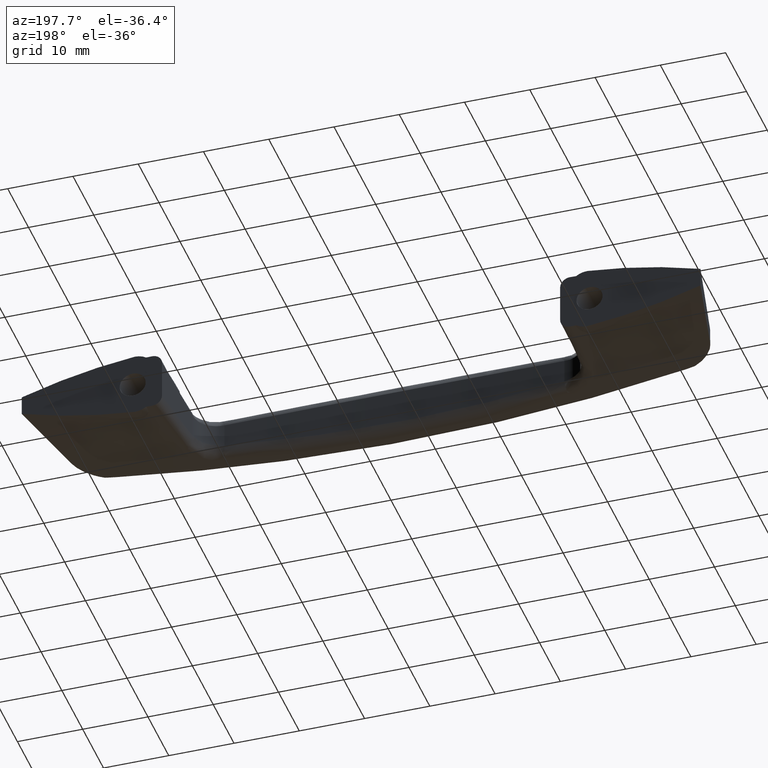
[diagram: clean part render]
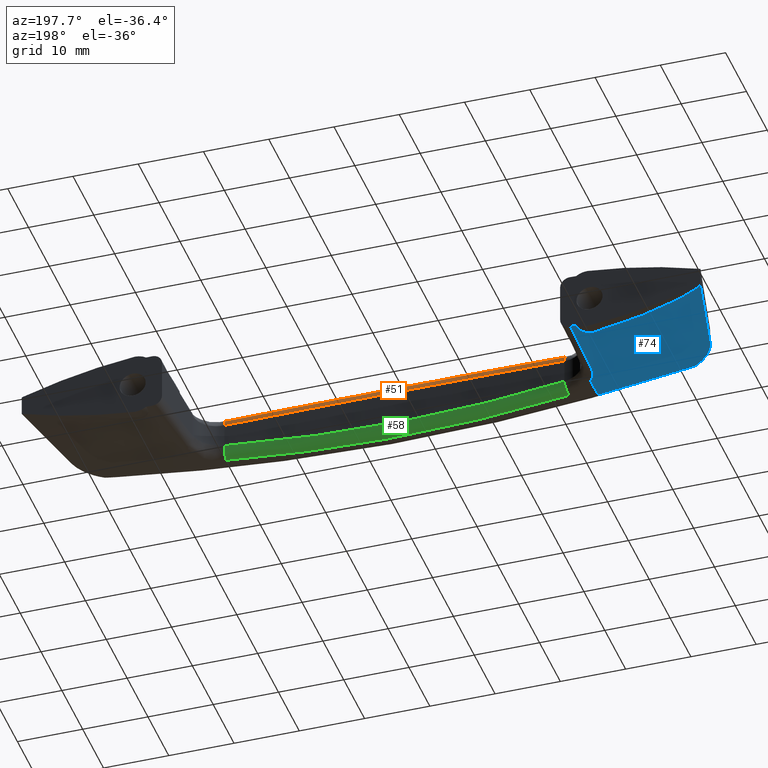
[diagram: same view with three faces highlighted in distinct colors, each labeled with its STEP entity id]
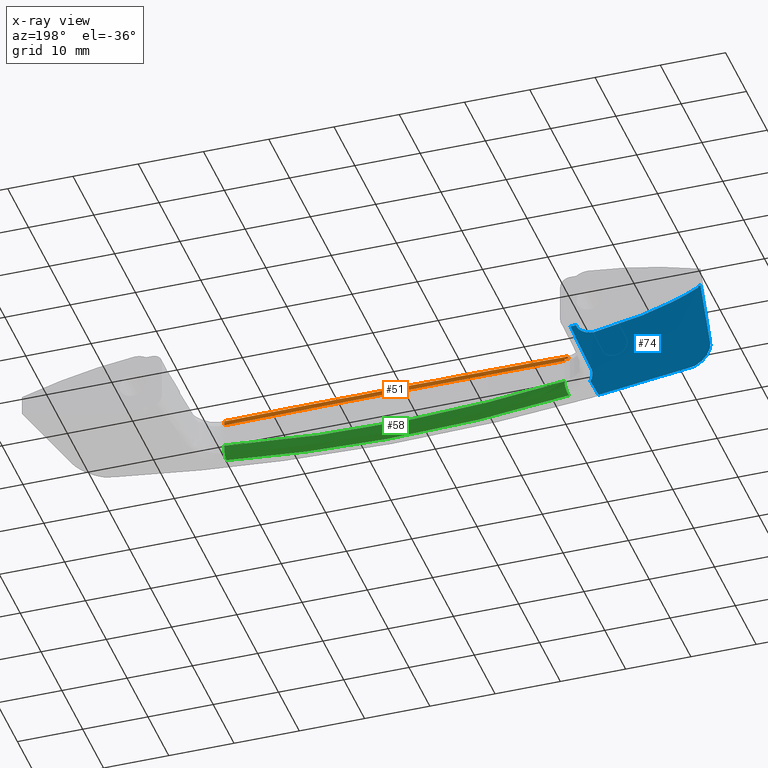
[diagram: x-ray of the same camera — body ghosted, the three highlighted faces saturated]
A machine part, auxiliary view with three faces highlighted in distinct colors.
The next image is the same camera in x-ray (body ghosted, the three faces saturated) — at least one of them is partly hidden behind the body in this view.
Their STEP definitions:

[orange] entity #51 — the highlighted face is a freeform B-spline surface patch.
#51=ADVANCED_FACE('',(#197),#196,.T.);
#196=( BOUNDED_SURFACE() B_SPLINE_SURFACE( 3,3,((#691,#692,#693,#694,#695,#696,#697),(#698,#699,#700,#701,#702,#703,#704),(#705,#706,#707,#708,#709,#710,#711),(#712,#713,#714,#715,#716,#717,#718),(#719,#720,#721,#722,#723,#724,#725),(#726,#727,#728,#729,#730,#731,#732),(#733,#734,#735,#736,#737,#738,#739)), .UNSPECIFIED.,.F.,.F.,.F.) B_SPLINE_SURFACE_WITH_KNOTS((4,1,2,4),(4,1,1,1,4),(0.00000000000E+00,1.34215920462E+01,2.65800156268E+01,5.31600312535E+01),(0.00000000000E+00,6.14791261686E-01,1.22958252337E+00,1.84437378506E+00,2.47242498714E+00), .UNSPECIFIED. ) GEOMETRIC_REPRESENTATION_ITEM() RATIONAL_B_SPLINE_SURFACE(((1.00000000000E+00,1.00000000000E+00,1.00000000000E+00,1.00000000000E+00,1.00000000000E+00,1.00000000000E+00,1.00000000000E+00),(1.00000000000E+00,1.00000000000E+00,1.00000000000E+00,1.00000000000E+00,1.00000000000E+00,1.00000000000E+00,1.00000000000E+00),(1.00000000000E+00,1.00000000000E+00,1.00000000000E+00,1.00000000000E+00,1.00000000000E+00,1.00000000000E+00,1.00000000000E+00),(1.00000000000E+00,1.00000000000E+00,1.00000000000E+00,1.00000000000E+00,1.00000000000E+00,1.00000000000E+00,1.00000000000E+00),(1.00000000000E+00,1.00000000000E+00,1.00000000000E+00,1.00000000000E+00,1.00000000000E+00,1.00000000000E+00,1.00000000000E+00),(1.00000000000E+00,1.00000000000E+00,1.00000000000E+00,1.00000000000E+00,1.00000000000E+00,1.00000000000E+00,1.00000000000E+00),(1.00000000000E+00,1.00000000000E+00,1.00000000000E+00,1.00000000000E+00,1.00000000000E+00,1.00000000000E+00,1.00000000000E+00))) REPRESENTATION_ITEM('') SURFACE() );
#197=FACE_OUTER_BOUND('',#740,.T.);
#691=CARTESIAN_POINT('',(8.47492673210E+00,-1.75558143364E+01,3.31706301302E+00));
#692=CARTESIAN_POINT('',(8.49002428104E+00,-1.73519736695E+01,3.33103035636E+00));
#693=CARTESIAN_POINT('',(8.52642523210E+00,-1.69390010818E+01,3.27418503201E+00));
#694=CARTESIAN_POINT('',(8.59061130841E+00,-1.64060333129E+01,2.94881570871E+00));
#695=CARTESIAN_POINT('',(8.65420421639E+00,-1.60453239728E+01,2.43349025846E+00));
#696=CARTESIAN_POINT('',(8.68891521052E+00,-1.59634321517E+01,2.01960198132E+00));
#697=CARTESIAN_POINT('',(8.70294287400E+00,-1.59663643848E+01,1.81079350719E+00));
#698=CARTESIAN_POINT('',(1.29241307965E+01,-1.78982697488E+01,3.62135597145E+00));
#699=CARTESIAN_POINT('',(1.29367203324E+01,-1.76949209121E+01,3.63403934981E+00));
#700=CARTESIAN_POINT('',(1.29670410673E+01,-1.72833336580E+01,3.57516852293E+00));
#701=CARTESIAN_POINT('',(1.30204887396E+01,-1.67525567074E+01,3.24878372575E+00));
#702=CARTESIAN_POINT('',(1.30735057407E+01,-1.63931495601E+01,2.73424598853E+00));
#703=CARTESIAN_POINT('',(1.31025393789E+01,-1.63110763623E+01,2.32159671364E+00));
#704=CARTESIAN_POINT('',(1.31143135333E+01,-1.63136289347E+01,2.11341112172E+00));
#705=CARTESIAN_POINT('',(2.17623833169E+01,-1.84127842294E+01,4.07889315284E+00));
#706=CARTESIAN_POINT('',(2.17699427952E+01,-1.82097244920E+01,4.09053795758E+00));
#707=CARTESIAN_POINT('',(2.17881358503E+01,-1.77989290067E+01,4.02999113399E+00));
#708=CARTESIAN_POINT('',(2.18201982687E+01,-1.72691796742E+01,3.70261201603E+00));
#709=CARTESIAN_POINT('',(2.18520266088E+01,-1.69099490127E+01,3.18844089585E+00));
#710=CARTESIAN_POINT('',(2.18694937705E+01,-1.68271547415E+01,2.77657619728E+00));
#711=CARTESIAN_POINT('',(2.18765932648E+01,-1.68291374192E+01,2.56878464094E+00));
#712=CARTESIAN_POINT('',(3.06124333427E+01,-1.85843919737E+01,4.23039247225E+00));
#713=CARTESIAN_POINT('',(3.06149382677E+01,-1.83813419533E+01,4.24184548488E+00));
#714=CARTESIAN_POINT('',(3.06209668161E+01,-1.79705729547E+01,4.18097414778E+00));
#715=CARTESIAN_POINT('',(3.06315892920E+01,-1.74407636453E+01,3.85334943635E+00));
#716=CARTESIAN_POINT('',(3.06421301583E+01,-1.70812818760E+01,3.33915430813E+00));
#717=CARTESIAN_POINT('',(3.06479105106E+01,-1.69981729224E+01,2.92736266141E+00));
#718=CARTESIAN_POINT('',(3.06502582104E+01,-1.69999684108E+01,2.71960762486E+00));
#719=CARTESIAN_POINT('',(4.38625082573E+01,-1.85853669303E+01,4.23130399409E+00));
#720=CARTESIAN_POINT('',(4.38574513894E+01,-1.83822511247E+01,4.24289108723E+00));
#721=CARTESIAN_POINT('',(4.38452732845E+01,-1.79712905436E+01,4.18222635571E+00));
#722=CARTESIAN_POINT('',(4.38238019569E+01,-1.74411405428E+01,3.85468319637E+00));
#723=CARTESIAN_POINT('',(4.38024919230E+01,-1.70813882802E+01,3.34036606948E+00));
#724=CARTESIAN_POINT('',(4.37908085383E+01,-1.69982091195E+01,2.92841254548E+00));
#725=CARTESIAN_POINT('',(4.37860651420E+01,-1.70000032186E+01,2.72057607057E+00));
#726=CARTESIAN_POINT('',(5.27118946253E+01,-1.82355502801E+01,3.92054222590E+00));
#727=CARTESIAN_POINT('',(5.27017710811E+01,-1.80325893998E+01,3.93215340017E+00));
#728=CARTESIAN_POINT('',(5.26774175489E+01,-1.76220893210E+01,3.87158338542E+00));
#729=CARTESIAN_POINT('',(5.26344971047E+01,-1.70929826370E+01,3.54431443264E+00));
#730=CARTESIAN_POINT('',(5.25918570017E+01,-1.67344747618E+01,3.03037751073E+00));
#731=CARTESIAN_POINT('',(5.25684126267E+01,-1.66521266865E+01,2.61871690636E+00));
#732=CARTESIAN_POINT('',(5.25588656490E+01,-1.66543057256E+01,2.41102826470E+00));
#733=CARTESIAN_POINT('',(6.15251920679E+01,-1.75568005519E+01,3.31657261034E+00));
#734=CARTESIAN_POINT('',(6.15100977767E+01,-1.73528860625E+01,3.33068094489E+00));
#735=CARTESIAN_POINT('',(6.14736970378E+01,-1.69397050799E+01,3.27405161121E+00));
#736=CARTESIAN_POINT('',(6.14094995255E+01,-1.64063757580E+01,2.94876629498E+00));
#737=CARTESIAN_POINT('',(6.13458937126E+01,-1.60453843935E+01,2.43331285156E+00));
#738=CARTESIAN_POINT('',(6.13111802769E+01,-1.59634231955E+01,2.01925570723E+00));
#739=CARTESIAN_POINT('',(6.12971542753E+01,-1.59663568110E+01,1.81036227850E+00));
#740=EDGE_LOOP('',(#2119,#2120,#2121,#2122,#2123,#2124,#2125));
#2119=ORIENTED_EDGE('',*,*,#2392,.T.);
#2120=ORIENTED_EDGE('',*,*,#2393,.T.);
#2121=ORIENTED_EDGE('',*,*,#2394,.T.);
#2122=ORIENTED_EDGE('',*,*,#2395,.T.);
#2123=ORIENTED_EDGE('',*,*,#2396,.F.);
#2124=ORIENTED_EDGE('',*,*,#2397,.T.);
#2125=ORIENTED_EDGE('',*,*,#2398,.T.);
#2392=EDGE_CURVE('',#2766,#2767,#2768,.T.);
#2393=EDGE_CURVE('',#2767,#2774,#2775,.T.);
#2394=EDGE_CURVE('',#2774,#2781,#2782,.T.);
#2395=EDGE_CURVE('',#2781,#2788,#2789,.T.);
#2396=EDGE_CURVE('',#2795,#2788,#2796,.T.);
#2397=EDGE_CURVE('',#2795,#2802,#2803,.T.);
#2398=EDGE_CURVE('',#2802,#2766,#2809,.T.);
#2766=VERTEX_POINT('',#3908);
#2767=VERTEX_POINT('',#3909);
#2768=(BOUNDED_CURVE() B_SPLINE_CURVE(3,(#3910,#3911,#3912,#3913,#3914,#3915),.UNSPECIFIED.,.F.,.F.) B_SPLINE_CURVE_WITH_KNOTS((4,1,1,4),(0.00000000000E+00,6.66663832931E-01,8.33337506652E-01,9.99988201256E-01),.UNSPECIFIED.) CURVE() GEOMETRIC_REPRESENTATION_ITEM() RATIONAL_B_SPLINE_CURVE((1.00000000000E+00,1.00000000000E+00,1.00000000000E+00,1.00000000000E+00,1.00000000000E+00,1.00000000000E+00)) REPRESENTATION_ITEM('') );
#2774=VERTEX_POINT('',#3916);
#2775=(BOUNDED_CURVE() B_SPLINE_CURVE(3,(#3917,#3918,#3919,#3920,#3921,#3922,#3923,#3924,#3925,#3926,#3927,#3928,#3929),.UNSPECIFIED.,.F.,.F.) B_SPLINE_CURVE_WITH_KNOTS((4,1,1,1,1,1,1,1,1,1,4),(4.02986800000E-09,9.98712303242E-02,1.99811213739E-01,2.99797675252E-01,3.99818823156E-01,4.99862642899E-01,5.99916247646E-01,6.99967491922E-01,8.00004521033E-01,9.00015630081E-01,9.99989331180E-01),.UNSPECIFIED.) CURVE() GEOMETRIC_REPRESENTATION_ITEM() RATIONAL_B_SPLINE_CURVE((1.00000000000E+00,1.00000000000E+00,1.00000000000E+00,1.00000000000E+00,1.00000000000E+00,1.00000000000E+00,1.00000000000E+00,1.00000000000E+00,1.00000000000E+00,1.00000000000E+00,1.00000000000E+00,1.00000000000E+00,1.00000000000E+00)) REPRESENTATION_ITEM('') );
#2781=VERTEX_POINT('',#3930);
#2782=(BOUNDED_CURVE() B_SPLINE_CURVE(3,(#3931,#3932,#3933,#3934,#3935),.UNSPECIFIED.,.F.,.F.) B_SPLINE_CURVE_WITH_KNOTS((4,1,4),(0.00000000000E+00,3.33333187222E-01,9.99996854795E-01),.UNSPECIFIED.) CURVE() GEOMETRIC_REPRESENTATION_ITEM() RATIONAL_B_SPLINE_CURVE((1.00000000000E+00,1.00000000000E+00,1.00000000000E+00,1.00000000000E+00,1.00000000000E+00)) REPRESENTATION_ITEM('') );
#2788=VERTEX_POINT('',#3936);
#2789=CIRCLE('',#3940,3.83885179701E+02);
#2795=VERTEX_POINT('',#3941);
#2796=CIRCLE('',#3945,1.50002394690E+00);
#2802=VERTEX_POINT('',#3946);
#2803=(BOUNDED_CURVE() B_SPLINE_CURVE(3,(#3947,#3948,#3949,#3950,#3951,#3952,#3953,#3954,#3955,#3956,#3957,#3958,#3959,#3960,#3961,#3962,#3963,#3964,#3965,#3966,#3967,#3968,#3969,#3970,#3971,#3972,#3973,#3974,#3975,#3976,#3977,#3978,#3979,#3980,#3981,#3982,#3983,#3984),.UNSPECIFIED.,.F.,.F.) B_SPLINE_CURVE_WITH_KNOTS((4,1,1,1,1,1,1,1,1,1,1,1,1,1,1,1,1,1,1,1,1,1,1,1,1,1,1,1,1,1,1,1,1,1,1,4),(0.00000000000E+00,4.21193892314E-02,8.41521527791E-02,1.26099577813E-01,1.67962959373E-01,2.09743600318E-01,2.51442811257E-01,2.93061910496E-01,3.34602223968E-01,3.76065085161E-01,4.17451835053E-01,4.58763822033E-01,5.00002401823E-01,5.21519319213E-01,5.43055092803E-01,5.64609916002E-01,5.86183981701E-01,6.07777482281E-01,6.29390609600E-01,6.51023554995E-01,6.72676509278E-01,6.94349662733E-01,7.16043205111E-01,7.37757325630E-01,7.59492212970E-01,7.81248055269E-01,8.03025040124E-01,8.24823354587E-01,8.46643185158E-01,8.68484717790E-01,8.90348137878E-01,9.12233630264E-01,9.34141379230E-01,9.56071568497E-01,9.78024381223E-01,1.00000000000E+00),.UNSPECIFIED.) CURVE() GEOMETRIC_REPRESENTATION_ITEM() RATIONAL_B_SPLINE_CURVE((1.00000000000E+00,1.00000000000E+00,1.00000000000E+00,1.00000000000E+00,1.00000000000E+00,1.00000000000E+00,1.00000000000E+00,1.00000000000E+00,1.00000000000E+00,1.00000000000E+00,1.00000000000E+00,1.00000000000E+00,1.00000000000E+00,1.00000000000E+00,1.00000000000E+00,1.00000000000E+00,1.00000000000E+00,1.00000000000E+00,1.00000000000E+00,1.00000000000E+00,1.00000000000E+00,1.00000000000E+00,1.00000000000E+00,1.00000000000E+00,1.00000000000E+00,1.00000000000E+00,1.00000000000E+00,1.00000000000E+00,1.00000000000E+00,1.00000000000E+00,1.00000000000E+00,1.00000000000E+00,1.00000000000E+00,1.00000000000E+00,1.00000000000E+00,1.00000000000E+00,1.00000000000E+00,1.00000000000E+00)) REPRESENTATION_ITEM('') );
#2809=CIRCLE('',#3988,1.50000000000E+00);
#3908=CARTESIAN_POINT('',(8.74022525611E+00,-1.75278793305E+01,3.33728758827E+00));
#3909=CARTESIAN_POINT('',(3.01109683057E+01,-1.85346237857E+01,4.20017535779E+00));
#3910=CARTESIAN_POINT('',(8.74022525611E+00,-1.75278793305E+01,3.33728758827E+00));
#3911=CARTESIAN_POINT('',(1.34765761325E+01,-1.78671546763E+01,3.65874442836E+00));
#3912=CARTESIAN_POINT('',(1.94122270740E+01,-1.81710540334E+01,3.95544983542E+00));
#3913=CARTESIAN_POINT('',(2.65439127050E+01,-1.84252389715E+01,4.14502881088E+00));
#3914=CARTESIAN_POINT('',(2.89227044798E+01,-1.84769240072E+01,4.18668985682E+00));
#3915=CARTESIAN_POINT('',(3.01109683057E+01,-1.85346237857E+01,4.20017535779E+00));
#3916=CARTESIAN_POINT('',(4.07913925727E+01,-1.85201828544E+01,4.18740566209E+00));
#3917=CARTESIAN_POINT('',(3.01109683057E+01,-1.85346237857E+01,4.20017535779E+00));
#3918=CARTESIAN_POINT('',(3.04664964290E+01,-1.85394335530E+01,4.20448961478E+00));
#3919=CARTESIAN_POINT('',(3.11777974449E+01,-1.85490562467E+01,4.21312096399E+00));
#3920=CARTESIAN_POINT('',(3.22451287929E+01,-1.85592109984E+01,4.22227893461E+00));
#3921=CARTESIAN_POINT('',(3.33130371479E+01,-1.85662404217E+01,4.22864282292E+00));
#3922=CARTESIAN_POINT('',(3.43813473104E+01,-1.85698355272E+01,4.23192101298E+00));
#3923=CARTESIAN_POINT('',(3.54499073297E+01,-1.85700805686E+01,4.23216484204E+00));
#3924=CARTESIAN_POINT('',(3.65185663239E+01,-1.85669474786E+01,4.22934482023E+00));
#3925=CARTESIAN_POINT('',(3.75871742279E+01,-1.85604642825E+01,4.22350604751E+00));
#3926=CARTESIAN_POINT('',(3.86555823226E+01,-1.85505468663E+01,4.21459094013E+00));
#3927=CARTESIAN_POINT('',(3.97236562392E+01,-1.85375034938E+01,4.20288892240E+00));
#3928=CARTESIAN_POINT('',(4.04355248475E+01,-1.85259556808E+01,4.19256610523E+00));
#3929=CARTESIAN_POINT('',(4.07913925727E+01,-1.85201828544E+01,4.18740566209E+00));
#3930=CARTESIAN_POINT('',(6.06205377310E+01,-1.76098041502E+01,3.37820925223E+00));
#3931=CARTESIAN_POINT('',(4.07913925727E+01,-1.85201828544E+01,4.18740566209E+00));
#3932=CARTESIAN_POINT('',(4.29966918332E+01,-1.84208152419E+01,4.15654303712E+00));
#3933=CARTESIAN_POINT('',(4.96169350162E+01,-1.82625656331E+01,3.99724393523E+00));
#3934=CARTESIAN_POINT('',(5.62231157389E+01,-1.78734634904E+01,3.67178420633E+00));
#3935=CARTESIAN_POINT('',(6.06205377310E+01,-1.76098041502E+01,3.37820925223E+00));
#3936=CARTESIAN_POINT('',(6.12622620493E+01,-1.75617877374E+01,3.33528622951E+00));
#3937=CARTESIAN_POINT('',(3.41460268597E+01,-1.49890581096E+00,-3.79253951475E+02));
#3938=DIRECTION('',(-7.14139329383E-02,9.96343880203E-01,4.68926706911E-02));
#3939=DIRECTION('',(-6.89646599326E-02,4.19680133310E-02,-9.96735953770E-01));
#3940=AXIS2_PLACEMENT_3D('',#3937,#3938,#3939);
#3941=CARTESIAN_POINT('',(6.10384394082E+01,-1.59865261851E+01,1.84122517874E+00));
#3942=CARTESIAN_POINT('',(6.11550315020E+01,-1.74820121011E+01,1.84122823237E+00));
#3943=DIRECTION('',(9.94717617583E-01,7.75507165202E-02,-6.72513764729E-02));
#3944=DIRECTION('',(7.77268216011E-02,-9.96974694363E-01,2.03571982785E-06));
#3945=AXIS2_PLACEMENT_3D('',#3942,#3943,#3944);
#3946=CARTESIAN_POINT('',(8.96156059175E+00,-1.59865261851E+01,1.84165313145E+00));
#3947=CARTESIAN_POINT('',(6.10384394082E+01,-1.59865261851E+01,1.84122517874E+00));
#3948=CARTESIAN_POINT('',(6.03096824012E+01,-1.60419573678E+01,1.88954410665E+00));
#3949=CARTESIAN_POINT('',(5.88536671998E+01,-1.61527057296E+01,1.98608258647E+00));
#3950=CARTESIAN_POINT('',(5.66695859036E+01,-1.63006270413E+01,2.11543516243E+00));
#3951=CARTESIAN_POINT('',(5.44884691675E+01,-1.64350746327E+01,2.23326976860E+00));
#3952=CARTESIAN_POINT('',(5.23102395050E+01,-1.65548251617E+01,2.33849446274E+00));
#3953=CARTESIAN_POINT('',(5.01350400211E+01,-1.66602917372E+01,2.43140093456E+00));
#3954=CARTESIAN_POINT('',(4.79629537137E+01,-1.67514509731E+01,2.51191125112E+00));
#3955=CARTESIAN_POINT('',(4.57940784678E+01,-1.68283967445E+01,2.58004622545E+00));
#3956=CARTESIAN_POINT('',(4.36285069906E+01,-1.68911922381E+01,2.63580028483E+00));
#3957=CARTESIAN_POINT('',(4.14663322816E+01,-1.69399094659E+01,2.67917492391E+00));
#3958=CARTESIAN_POINT('',(3.93076457642E+01,-1.69746186931E+01,2.71016968291E+00));
#3959=CARTESIAN_POINT('',(3.71525392982E+01,-1.69953912595E+01,2.72878487073E+00));
#3960=CARTESIAN_POINT('',(3.53428058527E+01,-1.70012016762E+01,2.73402941873E+00));
#3961=CARTESIAN_POINT('',(3.38769863296E+01,-1.69987451212E+01,2.73184956834E+00));
#3962=CARTESIAN_POINT('',(3.27534879005E+01,-1.69930959095E+01,2.72680917551E+00));
#3963=CARTESIAN_POINT('',(3.16290413480E+01,-1.69836689911E+01,2.71839733162E+00));
#3964=CARTESIAN_POINT('',(3.05036591519E+01,-1.69704546712E+01,2.70661414579E+00));
#3965=CARTESIAN_POINT('',(2.93773542025E+01,-1.69534432858E+01,2.69145958903E+00));
#3966=CARTESIAN_POINT('',(2.82501393631E+01,-1.69326252069E+01,2.67293366942E+00));
#3967=CARTESIAN_POINT('',(2.71220275873E+01,-1.69079908418E+01,2.65103638511E+00));
#3968=CARTESIAN_POINT('',(2.59930318875E+01,-1.68795306338E+01,2.62576773689E+00));
#3969=CARTESIAN_POINT('',(2.48631653435E+01,-1.68472350624E+01,2.59712772483E+00));
#3970=CARTESIAN_POINT('',(2.37324411001E+01,-1.68110946438E+01,2.56511634929E+00));
#3971=CARTESIAN_POINT('',(2.26008723676E+01,-1.67710999310E+01,2.52973361033E+00));
#3972=CARTESIAN_POINT('',(2.14684724216E+01,-1.67272415151E+01,2.49097950876E+00));
#3973=CARTESIAN_POINT('',(2.03352546038E+01,-1.66795100220E+01,2.44885404271E+00));
#3974=CARTESIAN_POINT('',(1.92012323195E+01,-1.66278961273E+01,2.40335722032E+00));
#3975=CARTESIAN_POINT('',(1.80664190455E+01,-1.65723905015E+01,2.35448901249E+00));
#3976=CARTESIAN_POINT('',(1.69308283015E+01,-1.65129840174E+01,2.30224952900E+00));
#3977=CARTESIAN_POINT('',(1.57944737559E+01,-1.64496669755E+01,2.24663836080E+00));
#3978=CARTESIAN_POINT('',(1.46573688321E+01,-1.63824320027E+01,2.18765703792E+00));
#3979=CARTESIAN_POINT('',(1.35195281776E+01,-1.63112632181E+01,2.12529984273E+00));
#3980=CARTESIAN_POINT('',(1.23809621740E+01,-1.62361767308E+01,2.05958814749E+00));
#3981=CARTESIAN_POINT('',(1.12416974581E+01,-1.61570692707E+01,1.99044206869E+00));
#3982=CARTESIAN_POINT('',(1.01017002156E+01,-1.60742839778E+01,1.91816019718E+00));
#3983=CARTESIAN_POINT('',(9.34173864787E+00,-1.60157889055E+01,1.86716431177E+00));
#3984=CARTESIAN_POINT('',(8.96156059175E+00,-1.59865261851E+01,1.84165313145E+00));
#3985=CARTESIAN_POINT('',(8.84497056455E+00,-1.74819882426E+01,1.84165313145E+00));
#3986=DIRECTION('',(9.94715396720E-01,-7.75505433761E-02,6.72844168444E-02));
#3987=DIRECTION('',(-7.77266848007E-02,-9.96974705030E-01,-3.84136762522E-13));
#3988=AXIS2_PLACEMENT_3D('',#3985,#3986,#3987);

[blue] entity #74 — the highlighted face is a freeform B-spline surface patch.
#74=ADVANCED_FACE('',(#427),#426,.F.);
#426=( BOUNDED_SURFACE() B_SPLINE_SURFACE( 3,3,((#1883,#1884,#1885,#1886,#1887),(#1888,#1889,#1890,#1891,#1892),(#1893,#1894,#1895,#1896,#1897),(#1898,#1899,#1900,#1901,#1902)), .UNSPECIFIED.,.F.,.F.,.F.) B_SPLINE_SURFACE_WITH_KNOTS((4,4),(4,1,4),(0.00000000000E+00,2.26330040891E+01),(0.00000000000E+00,1.75019230603E+01,1.99560299999E+01), .UNSPECIFIED. ) GEOMETRIC_REPRESENTATION_ITEM() RATIONAL_B_SPLINE_SURFACE(((1.00000000000E+00,1.00000000000E+00,1.00000000000E+00,1.00000000000E+00,1.00000000000E+00),(1.00000000000E+00,1.00000000000E+00,1.00000000000E+00,1.00000000000E+00,1.00000000000E+00),(1.00000000000E+00,1.00000000000E+00,1.00000000000E+00,1.00000000000E+00,1.00000000000E+00),(1.00000000000E+00,1.00000000000E+00,1.00000000000E+00,1.00000000000E+00,1.00000000000E+00))) REPRESENTATION_ITEM('') SURFACE() );
#427=FACE_OUTER_BOUND('',#1903,.T.);
#1883=CARTESIAN_POINT('',(5.21805327550E+00,9.64692107430E-02,-4.50877799349E+00));
#1884=CARTESIAN_POINT('',(5.05595701499E+00,-5.60467154653E+00,-3.95695367753E+00));
#1885=CARTESIAN_POINT('',(4.87023290528E+00,-1.21052676049E+01,-3.32633772389E+00));
#1886=CARTESIAN_POINT('',(4.86519182147E+00,-1.85967202630E+01,-2.98021246290E+00));
#1887=CARTESIAN_POINT('',(4.86621383653E+00,-1.93949281664E+01,-2.94023275523E+00));
#1888=CARTESIAN_POINT('',(-2.32578180898E+00,9.64692107430E-02,-4.56144827307E+00));
#1889=CARTESIAN_POINT('',(-1.98744628357E+00,-5.60467154653E+00,-3.74553154019E+00));
#1890=CARTESIAN_POINT('',(-1.60208908613E+00,-1.21052676049E+01,-2.81222693114E+00));
#1891=CARTESIAN_POINT('',(-1.13240592045E+00,-1.85967202630E+01,-2.47808866941E+00));
#1892=CARTESIAN_POINT('',(-1.07387999305E+00,-1.93949281664E+01,-2.44244266718E+00));
#1893=CARTESIAN_POINT('',(-9.87197888320E+00,9.64692107430E-02,-3.53611462061E+00));
#1894=CARTESIAN_POINT('',(-9.02587123160E+00,-5.60467154653E+00,-2.87059028646E+00));
#1895=CARTESIAN_POINT('',(-8.06101607774E+00,-1.21052676049E+01,-2.10927951470E+00));
#1896=CARTESIAN_POINT('',(-7.11765038442E+00,-1.85967202630E+01,-1.84390595670E+00));
#1897=CARTESIAN_POINT('',(-7.00183460352E+00,-1.93949281664E+01,-1.81577825425E+00));
#1898=CARTESIAN_POINT('',(-1.71285656690E+01,9.64692107430E-02,-1.47239607620E+00));
#1899=CARTESIAN_POINT('',(-1.58963872814E+01,-5.60467154653E+00,-1.35412839835E+00));
#1900=CARTESIAN_POINT('',(-1.44914253223E+01,-1.21052676049E+01,-1.21931073813E+00));
#1901=CARTESIAN_POINT('',(-1.30881545392E+01,-1.85967202630E+01,-1.07777386862E+00));
#1902=CARTESIAN_POINT('',(-1.29156016880E+01,-1.93949281664E+01,-1.06030721133E+00));
#1903=EDGE_LOOP('',(#2229,#2230,#2231,#2232,#2233,#2234,#2235,#2236,#2237,#2238,#2239,#2240,#2241));
#2229=ORIENTED_EDGE('',*,*,#2469,.F.);
#2230=ORIENTED_EDGE('',*,*,#2433,.T.);
#2231=ORIENTED_EDGE('',*,*,#2428,.T.);
#2232=ORIENTED_EDGE('',*,*,#2468,.T.);
#2233=ORIENTED_EDGE('',*,*,#2467,.T.);
#2234=ORIENTED_EDGE('',*,*,#2357,.F.);
#2235=ORIENTED_EDGE('',*,*,#2458,.T.);
#2236=ORIENTED_EDGE('',*,*,#2450,.F.);
#2237=ORIENTED_EDGE('',*,*,#2470,.F.);
#2238=ORIENTED_EDGE('',*,*,#2382,.F.);
#2239=ORIENTED_EDGE('',*,*,#2381,.T.);
#2240=ORIENTED_EDGE('',*,*,#2380,.F.);
#2241=ORIENTED_EDGE('',*,*,#2378,.F.);
#2357=EDGE_CURVE('',#2520,#2527,#2528,.T.);
#2378=EDGE_CURVE('',#2663,#2671,#2672,.T.);
#2380=EDGE_CURVE('',#2671,#2684,#2685,.T.);
#2381=EDGE_CURVE('',#2691,#2684,#2692,.T.);
#2382=EDGE_CURVE('',#2691,#2698,#2699,.T.);
#2428=EDGE_CURVE('',#3012,#2999,#3013,.T.);
#2433=EDGE_CURVE('',#3033,#3012,#3046,.T.);
#2450=EDGE_CURVE('',#3159,#3160,#3161,.T.);
#2458=EDGE_CURVE('',#2520,#3160,#3215,.T.);
#2467=EDGE_CURVE('',#3270,#2527,#3271,.T.);
#2468=EDGE_CURVE('',#2999,#3270,#3277,.T.);
#2469=EDGE_CURVE('',#3033,#2663,#3283,.T.);
#2470=EDGE_CURVE('',#2698,#3159,#3289,.T.);
#2520=VERTEX_POINT('',#3479);
#2527=VERTEX_POINT('',#3490);
#2528=(BOUNDED_CURVE() B_SPLINE_CURVE(3,(#3491,#3492,#3493,#3494,#3495,#3496),.UNSPECIFIED.,.F.,.F.) B_SPLINE_CURVE_WITH_KNOTS((4,2,4),(0.00000000000E+00,5.00000000000E-01,1.00000000000E+00),.UNSPECIFIED.) CURVE() GEOMETRIC_REPRESENTATION_ITEM() RATIONAL_B_SPLINE_CURVE((1.00000000000E+00,1.00000000000E+00,1.00000000000E+00,1.00000000000E+00,1.00000000000E+00,1.00000000000E+00)) REPRESENTATION_ITEM('') );
#2663=VERTEX_POINT('',#3732);
#2671=VERTEX_POINT('',#3738);
#2672=(BOUNDED_CURVE() B_SPLINE_CURVE(3,(#3739,#3740,#3741,#3742,#3743,#3744,#3745,#3746,#3747,#3748,#3749,#3750,#3751,#3752,#3753,#3754,#3755,#3756,#3757,#3758,#3759,#3760,#3761,#3762,#3763,#3764,#3765,#3766),.UNSPECIFIED.,.F.,.F.) B_SPLINE_CURVE_WITH_KNOTS((4,2,2,2,2,2,2,2,2,2,2,2,2,4),(0.00000000000E+00,1.25000000000E-01,2.50000000000E-01,3.12500000000E-01,3.75000000000E-01,5.00000000000E-01,5.62500000000E-01,5.93750000000E-01,6.25000000000E-01,7.50000000000E-01,8.12500000000E-01,8.75000000000E-01,9.37500000000E-01,1.00000000000E+00),.UNSPECIFIED.) CURVE() GEOMETRIC_REPRESENTATION_ITEM() RATIONAL_B_SPLINE_CURVE((1.00000000000E+00,1.00000000000E+00,1.00000000000E+00,1.00000000000E+00,1.00000000000E+00,1.00000000000E+00,1.00000000000E+00,1.00000000000E+00,1.00000000000E+00,1.00000000000E+00,1.00000000000E+00,1.00000000000E+00,1.00000000000E+00,1.00000000000E+00,1.00000000000E+00,1.00000000000E+00,1.00000000000E+00,1.00000000000E+00,1.00000000000E+00,1.00000000000E+00,1.00000000000E+00,1.00000000000E+00,1.00000000000E+00,1.00000000000E+00,1.00000000000E+00,1.00000000000E+00,1.00000000000E+00,1.00000000000E+00)) REPRESENTATION_ITEM('') );
#2684=VERTEX_POINT('',#3771);
#2685=(BOUNDED_CURVE() B_SPLINE_CURVE(3,(#3772,#3773,#3774,#3775,#3776,#3777,#3778,#3779,#3780,#3781,#3782,#3783,#3784,#3785,#3786,#3787,#3788,#3789,#3790,#3791,#3792,#3793,#3794,#3795,#3796,#3797,#3798,#3799),.UNSPECIFIED.,.F.,.F.) B_SPLINE_CURVE_WITH_KNOTS((4,2,2,2,2,2,2,2,2,2,2,2,2,4),(0.00000000000E+00,2.50000000000E-01,5.00000000000E-01,5.62500000000E-01,6.25000000000E-01,7.50000000000E-01,8.12500000000E-01,8.75000000000E-01,9.06250000000E-01,9.37500000000E-01,9.68750000000E-01,9.84375000000E-01,9.92187500000E-01,1.00000000000E+00),.UNSPECIFIED.) CURVE() GEOMETRIC_REPRESENTATION_ITEM() RATIONAL_B_SPLINE_CURVE((1.00000000000E+00,1.00000000000E+00,1.00000000000E+00,1.00000000000E+00,1.00000000000E+00,1.00000000000E+00,1.00000000000E+00,1.00000000000E+00,1.00000000000E+00,1.00000000000E+00,1.00000000000E+00,1.00000000000E+00,1.00000000000E+00,1.00000000000E+00,1.00000000000E+00,1.00000000000E+00,1.00000000000E+00,1.00000000000E+00,1.00000000000E+00,1.00000000000E+00,1.00000000000E+00,1.00000000000E+00,1.00000000000E+00,1.00000000000E+00,1.00000000000E+00,1.00000000000E+00,1.00000000000E+00,1.00000000000E+00)) REPRESENTATION_ITEM('') );
#2691=VERTEX_POINT('',#3800);
#2692=CIRCLE('',#3804,1.58284550455E+02);
#2698=VERTEX_POINT('',#3805);
#2699=CIRCLE('',#3809,8.14058417845E-01);
#2999=VERTEX_POINT('',#4331);
#3012=VERTEX_POINT('',#4366);
#3013=(BOUNDED_CURVE() B_SPLINE_CURVE(3,(#4367,#4368,#4369,#4370,#4371,#4372,#4373,#4374,#4375,#4376,#4377,#4378,#4379,#4380,#4381,#4382,#4383,#4384),.UNSPECIFIED.,.F.,.F.) B_SPLINE_CURVE_WITH_KNOTS((4,1,1,1,1,1,1,1,1,1,1,1,1,1,1,4),(0.00000000000E+00,5.06996021178E-02,1.01121525699E-01,1.51310483498E-01,2.01311091073E-01,2.51167767196E-01,3.00924633923E-01,3.50625417630E-01,4.00313352329E-01,4.50031086500E-01,4.99820594624E-01,6.00510609809E-01,7.00526376081E-01,8.00216192884E-01,8.99926675572E-01,1.00000000000E+00),.UNSPECIFIED.) CURVE() GEOMETRIC_REPRESENTATION_ITEM() RATIONAL_B_SPLINE_CURVE((1.00000000000E+00,1.00000000000E+00,1.00000000000E+00,1.00000000000E+00,1.00000000000E+00,1.00000000000E+00,1.00000000000E+00,1.00000000000E+00,1.00000000000E+00,1.00000000000E+00,1.00000000000E+00,1.00000000000E+00,1.00000000000E+00,1.00000000000E+00,1.00000000000E+00,1.00000000000E+00,1.00000000000E+00,1.00000000000E+00)) REPRESENTATION_ITEM('') );
#3033=VERTEX_POINT('',#4410);
#3046=(BOUNDED_CURVE() B_SPLINE_CURVE(3,(#4425,#4426,#4427,#4428,#4429,#4430,#4431,#4432,#4433,#4434),.UNSPECIFIED.,.F.,.F.) B_SPLINE_CURVE_WITH_KNOTS((4,1,1,1,1,1,1,4),(0.00000000000E+00,1.09105529469E-01,2.29503777238E-01,3.61174233124E-01,5.04091118860E-01,6.58223871331E-01,8.23538485299E-01,1.00000000000E+00),.UNSPECIFIED.) CURVE() GEOMETRIC_REPRESENTATION_ITEM() RATIONAL_B_SPLINE_CURVE((1.00000000000E+00,1.00000000000E+00,1.00000000000E+00,1.00000000000E+00,1.00000000000E+00,1.00000000000E+00,1.00000000000E+00,1.00000000000E+00,1.00000000000E+00,1.00000000000E+00)) REPRESENTATION_ITEM('') );
#3159=VERTEX_POINT('',#4601);
#3160=VERTEX_POINT('',#4602);
#3161=(BOUNDED_CURVE() B_SPLINE_CURVE(3,(#4603,#4604,#4605,#4606),.UNSPECIFIED.,.F.,.F.) B_SPLINE_CURVE_WITH_KNOTS((4,4),(0.00000000000E+00,6.14284639556E-01),.UNSPECIFIED.) CURVE() GEOMETRIC_REPRESENTATION_ITEM() RATIONAL_B_SPLINE_CURVE((1.00000000000E+00,1.00000000000E+00,1.00000000000E+00,1.00000000000E+00)) REPRESENTATION_ITEM('') );
#3215=(BOUNDED_CURVE() B_SPLINE_CURVE(3,(#4635,#4636,#4637,#4638,#4639,#4640,#4641,#4642,#4643,#4644,#4645,#4646,#4647,#4648,#4649,#4650,#4651,#4652,#4653,#4654,#4655,#4656,#4657,#4658,#4659,#4660),.UNSPECIFIED.,.F.,.F.) B_SPLINE_CURVE_WITH_KNOTS((4,2,2,2,2,2,2,2,2,2,2,2,4),(0.00000000000E+00,6.25000000000E-02,1.25000000000E-01,2.50000000000E-01,3.75000000000E-01,4.06250000000E-01,4.37500000000E-01,5.00000000000E-01,6.25000000000E-01,7.50000000000E-01,8.12500000000E-01,8.75000000000E-01,1.00000000000E+00),.UNSPECIFIED.) CURVE() GEOMETRIC_REPRESENTATION_ITEM() RATIONAL_B_SPLINE_CURVE((1.00000000000E+00,1.00000000000E+00,1.00000000000E+00,1.00000000000E+00,1.00000000000E+00,1.00000000000E+00,1.00000000000E+00,1.00000000000E+00,1.00000000000E+00,1.00000000000E+00,1.00000000000E+00,1.00000000000E+00,1.00000000000E+00,1.00000000000E+00,1.00000000000E+00,1.00000000000E+00,1.00000000000E+00,1.00000000000E+00,1.00000000000E+00,1.00000000000E+00,1.00000000000E+00,1.00000000000E+00,1.00000000000E+00,1.00000000000E+00,1.00000000000E+00,1.00000000000E+00)) REPRESENTATION_ITEM('') );
#3270=VERTEX_POINT('',#4768);
#3271=(BOUNDED_CURVE() B_SPLINE_CURVE(3,(#4769,#4770,#4771,#4772),.UNSPECIFIED.,.F.,.F.) B_SPLINE_CURVE_WITH_KNOTS((4,4),(9.00830430130E-01,1.00000000000E+00),.UNSPECIFIED.) CURVE() GEOMETRIC_REPRESENTATION_ITEM() RATIONAL_B_SPLINE_CURVE((1.00000000000E+00,1.00000000000E+00,1.00000000000E+00,1.00000000000E+00)) REPRESENTATION_ITEM('') );
#3277=CIRCLE('',#4776,1.96240245801E+02);
#3283=CIRCLE('',#4780,7.99857012751E+01);
#3289=CIRCLE('',#4784,8.03521478451E+01);
#3479=CARTESIAN_POINT('',(-1.01960830841E+01,-1.87285518601E+01,-1.43227841085E+00));
#3490=CARTESIAN_POINT('',(4.77773629513E+00,-1.92793649142E+01,-2.93861835853E+00));
#3491=CARTESIAN_POINT('',(-1.01960830841E+01,-1.87285518601E+01,-1.43227841085E+00));
#3492=CARTESIAN_POINT('',(-7.70627581881E+00,-1.88463000106E+01,-1.72801896496E+00));
#3493=CARTESIAN_POINT('',(-5.21315600910E+00,-1.89516820399E+01,-2.00107272933E+00));
#3494=CARTESIAN_POINT('',(-2.21527136752E-01,-1.91356378873E+01,-2.50300008025E+00));
#3495=CARTESIAN_POINT('',(2.27696598021E+00,-1.92142669191E+01,-2.73183705189E+00));
#3496=CARTESIAN_POINT('',(4.77773629513E+00,-1.92793649142E+01,-2.93861835853E+00));
#3732=CARTESIAN_POINT('',(2.06258466544E+00,-5.45849600000E-16,-4.45734734384E+00));
#3738=CARTESIAN_POINT('',(3.42183007506E-01,-2.95523113438E+00,-4.03318838558E+00));
#3739=CARTESIAN_POINT('',(2.06258466544E+00,-5.45849600000E-16,-4.45734734384E+00));
#3740=CARTESIAN_POINT('',(2.08674469328E+00,-1.57888215438E-01,-4.44042408759E+00));
#3741=CARTESIAN_POINT('',(2.09881329630E+00,-3.15558512261E-01,-4.42315813543E+00));
#3742=CARTESIAN_POINT('',(2.10076934932E+00,-6.30490591442E-01,-4.38791993108E+00));
#3743=CARTESIAN_POINT('',(2.09064792494E+00,-7.87752276262E-01,-4.36994798089E+00));
#3744=CARTESIAN_POINT('',(2.05800477953E+00,-1.02331123011E+00,-4.34232769632E+00));
#3745=CARTESIAN_POINT('',(2.04410482916E+00,-1.10210627769E+00,-4.33296874898E+00));
#3746=CARTESIAN_POINT('',(2.01056273490E+00,-1.25717554143E+00,-4.31427866176E+00));
#3747=CARTESIAN_POINT('',(1.99092747844E+00,-1.33359798685E+00,-4.30493128431E+00));
#3748=CARTESIAN_POINT('',(1.92321933517E+00,-1.55944262521E+00,-4.27684559908E+00));
#3749=CARTESIAN_POINT('',(1.86645216419E+00,-1.70548441578E+00,-4.25806633647E+00));
#3750=CARTESIAN_POINT('',(1.76131098585E+00,-1.91675296266E+00,-4.22963495356E+00));
#3751=CARTESIAN_POINT('',(1.72290856857E+00,-1.98586755211E+00,-4.22011356045E+00));
#3752=CARTESIAN_POINT('',(1.65965054017E+00,-2.08733194317E+00,-4.20573491966E+00));
#3753=CARTESIAN_POINT('',(1.63757929107E+00,-2.12083074521E+00,-4.20091864201E+00));
#3754=CARTESIAN_POINT('',(1.59199467653E+00,-2.18623282365E+00,-4.19136661665E+00));
#3755=CARTESIAN_POINT('',(1.56842413516E+00,-2.21823424130E+00,-4.18661719618E+00));
#3756=CARTESIAN_POINT('',(1.44658482424E+00,-2.37465607722E+00,-4.16299780917E+00));
#3757=CARTESIAN_POINT('',(1.33655186593E+00,-2.48849663535E+00,-4.14450451900E+00));
#3758=CARTESIAN_POINT('',(1.14879620476E+00,-2.63881271032E+00,-4.11733780419E+00));
#3759=CARTESIAN_POINT('',(1.08346749761E+00,-2.68456078184E+00,-4.10854011161E+00));
#3760=CARTESIAN_POINT('',(9.48246111145E-01,-2.76636972552E+00,-4.09160190373E+00));
#3761=CARTESIAN_POINT('',(8.78193272517E-01,-2.80256489469E+00,-4.08343760091E+00));
#3762=CARTESIAN_POINT('',(7.32901386227E-01,-2.86495289651E+00,-4.06774954564E+00));
#3763=CARTESIAN_POINT('',(6.57492203700E-01,-2.89119922713E+00,-4.06020925223E+00));
#3764=CARTESIAN_POINT('',(5.01614990680E-01,-2.93234051820E+00,-4.04591351996E+00));
#3765=CARTESIAN_POINT('',(4.22505487674E-01,-2.94689851636E+00,-4.03928052543E+00));
#3766=CARTESIAN_POINT('',(3.42183007506E-01,-2.95523113438E+00,-4.03318838558E+00));
#3771=CARTESIAN_POINT('',(-1.65773206453E+01,-2.62320394384E-01,-1.59623253017E+00));
#3772=CARTESIAN_POINT('',(3.42183007506E-01,-2.95523113438E+00,-4.03318838558E+00));
#3773=CARTESIAN_POINT('',(-1.09917240770E+00,-2.84457125484E+00,-3.95435393310E+00));
#3774=CARTESIAN_POINT('',(-2.53443706179E+00,-2.70599369733E+00,-3.84718187547E+00));
#3775=CARTESIAN_POINT('',(-5.39275183433E+00,-2.37504550339E+00,-3.57340552691E+00));
#3776=CARTESIAN_POINT('',(-6.81580916273E+00,-2.18276157808E+00,-3.40677109123E+00));
#3777=CARTESIAN_POINT('',(-8.58692887314E+00,-1.91203086884E+00,-3.15679685968E+00));
#3778=CARTESIAN_POINT('',(-8.94084281077E+00,-1.85635511386E+00,-3.10469599692E+00));
#3779=CARTESIAN_POINT('',(-9.64707871171E+00,-1.74216750832E+00,-2.99629213126E+00));
#3780=CARTESIAN_POINT('',(-9.99948572573E+00,-1.68364460009E+00,-2.93997787052E+00));
#3781=CARTESIAN_POINT('',(-1.10545481070E+01,-1.50384082737E+00,-2.76451111250E+00));
#3782=CARTESIAN_POINT('',(-1.17550670631E+01,-1.37844353267E+00,-2.63882263763E+00));
#3783=CARTESIAN_POINT('',(-1.28012198251E+01,-1.18103213876E+00,-2.43656419323E+00));
#3784=CARTESIAN_POINT('',(-1.31491642222E+01,-1.11366440524E+00,-2.36685765781E+00));
#3785=CARTESIAN_POINT('',(-1.38433200105E+01,-9.74928040803E-01,-2.22284226941E+00));
#3786=CARTESIAN_POINT('',(-1.41895449960E+01,-9.03634176701E-01,-2.14852366042E+00));
#3787=CARTESIAN_POINT('',(-1.47072151836E+01,-7.91791272620E-01,-2.03373096010E+00));
#3788=CARTESIAN_POINT('',(-1.48794916187E+01,-7.53680077638E-01,-1.99491593094E+00));
#3789=CARTESIAN_POINT('',(-1.52233170817E+01,-6.74900257810E-01,-1.91628232455E+00));
#3790=CARTESIAN_POINT('',(-1.53948747588E+01,-6.34279267047E-01,-1.87645747071E+00));
#3791=CARTESIAN_POINT('',(-1.57368830514E+01,-5.48411848944E-01,-1.79605548816E+00));
#3792=CARTESIAN_POINT('',(-1.59073864453E+01,-5.03456379455E-01,-1.75543975961E+00));
#3793=CARTESIAN_POINT('',(-1.61613605580E+01,-4.27334623312E-01,-1.69462454576E+00));
#3794=CARTESIAN_POINT('',(-1.62457263986E+01,-4.00538279662E-01,-1.67436734753E+00));
#3795=CARTESIAN_POINT('',(-1.63713099972E+01,-3.55307472558E-01,-1.64438670646E+00));
#3796=CARTESIAN_POINT('',(-1.64130091125E+01,-3.39384425360E-01,-1.63446156244E+00));
#3797=CARTESIAN_POINT('',(-1.64958059966E+01,-3.04317312311E-01,-1.61495159747E+00));
#3798=CARTESIAN_POINT('',(-1.65369472072E+01,-2.85413134614E-01,-1.60533458253E+00));
#3799=CARTESIAN_POINT('',(-1.65773206453E+01,-2.62320394384E-01,-1.59623253017E+00));
#3800=CARTESIAN_POINT('',(-1.65773206453E+01,-1.20910616790E-02,-1.61759824614E+00));
#3801=CARTESIAN_POINT('',(8.69183890127E+01,-1.03258435464E+01,-1.20933412391E+02));
#3802=DIRECTION('',(7.56616615056E-01,5.56264152846E-02,6.51488295938E-01));
#3803=DIRECTION('',(6.53858569015E-01,-6.51595651949E-02,-7.53805812387E-01));
#3804=AXIS2_PLACEMENT_3D('',#3801,#3802,#3803);
#3805=CARTESIAN_POINT('',(-1.65519056216E+01,0.00000000000E+00,-1.62564999383E+00));
#3806=CARTESIAN_POINT('',(-1.62223516284E+01,-7.43988908947E-01,-1.64943605234E+00));
#3807=DIRECTION('',(-2.63482438738E-01,-8.59923024673E-02,-9.60823775930E-01));
#3808=DIRECTION('',(4.36048579647E-01,-8.99072881288E-01,-3.91099772580E-02));
#3809=AXIS2_PLACEMENT_3D('',#3806,#3807,#3808);
#4331=CARTESIAN_POINT('',(4.78651074730E+00,-1.54376315434E+01,-3.15939210014E+00));
#4366=CARTESIAN_POINT('',(3.67474479770E+00,-1.24680926543E+01,-3.29067012687E+00));
#4367=CARTESIAN_POINT('',(3.67474479770E+00,-1.24680926543E+01,-3.29067012687E+00));
#4368=CARTESIAN_POINT('',(3.67840363145E+00,-1.25222697798E+01,-3.28659562669E+00));
#4369=CARTESIAN_POINT('',(3.68570125975E+00,-1.26303273061E+01,-3.27846894211E+00));
#4370=CARTESIAN_POINT('',(3.70274761471E+00,-1.27915574073E+01,-3.26694117371E+00));
#4371=CARTESIAN_POINT('',(3.72419528284E+00,-1.29515218609E+01,-3.25595214522E+00));
#4372=CARTESIAN_POINT('',(3.75045171659E+00,-1.31101980825E+01,-3.24554813814E+00));
#4373=CARTESIAN_POINT('',(3.78137384134E+00,-1.32675916855E+01,-3.23571958861E+00));
#4374=CARTESIAN_POINT('',(3.81696580882E+00,-1.34237007595E+01,-3.22647100954E+00));
#4375=CARTESIAN_POINT('',(3.85719336081E+00,-1.35785255186E+01,-3.21780241618E+00));
#4376=CARTESIAN_POINT('',(3.90203254087E+00,-1.37320652643E+01,-3.20971427658E+00));
#4377=CARTESIAN_POINT('',(3.95145966394E+00,-1.38843209579E+01,-3.20220637096E+00));
#4378=CARTESIAN_POINT('',(4.02379290348E+00,-1.40866048490E+01,-3.19292233126E+00));
#4379=CARTESIAN_POINT('',(4.12550455571E+00,-1.43356355632E+01,-3.18280789197E+00));
#4380=CARTESIAN_POINT('',(4.26514844430E+00,-1.46265252658E+01,-3.17313702394E+00));
#4381=CARTESIAN_POINT('',(4.42186185657E+00,-1.49073925286E+01,-3.16601760358E+00));
#4382=CARTESIAN_POINT('',(4.59415278390E+00,-1.51792652187E+01,-3.16118895216E+00));
#4383=CARTESIAN_POINT('',(4.72231383867E+00,-1.53514052233E+01,-3.15999177557E+00));
#4384=CARTESIAN_POINT('',(4.78651074730E+00,-1.54376315434E+01,-3.15939210014E+00));
#4410=CARTESIAN_POINT('',(2.95400836478E+00,0.00000000000E+00,-4.48184442063E+00));
#4425=CARTESIAN_POINT('',(2.95400836478E+00,0.00000000000E+00,-4.48184442063E+00));
#4426=CARTESIAN_POINT('',(2.98038794791E+00,-4.52934249268E-01,-4.43338081849E+00));
#4427=CARTESIAN_POINT('',(3.03587747260E+00,-1.40568267140E+00,-4.33143749990E+00));
#4428=CARTESIAN_POINT('',(3.12307661409E+00,-2.90529618590E+00,-4.17334169399E+00));
#4429=CARTESIAN_POINT('',(3.21787075737E+00,-4.54571709847E+00,-4.00416106381E+00));
#4430=CARTESIAN_POINT('',(3.32017281183E+00,-6.32689183444E+00,-3.82656808719E+00));
#4431=CARTESIAN_POINT('',(3.43026657105E+00,-8.24876978497E+00,-3.64442515099E+00));
#4432=CARTESIAN_POINT('',(3.54857720113E+00,-1.03111457869E+01,-3.46052014013E+00));
#4433=CARTESIAN_POINT('',(3.63178434224E+00,-1.17336455985E+01,-3.34850457984E+00));
#4434=CARTESIAN_POINT('',(3.67474479770E+00,-1.24680926543E+01,-3.29067012687E+00));
#4601=CARTESIAN_POINT('',(-1.70000000000E+01,6.40388500000E-17,-1.50075602844E+00));
#4602=CARTESIAN_POINT('',(-1.39594099777E+01,-1.41344184758E+01,-1.18779651538E+00));
#4603=CARTESIAN_POINT('',(-1.70000000000E+01,6.40388500000E-17,-1.50075602844E+00));
#4604=CARTESIAN_POINT('',(-1.59861835094E+01,-4.71280456427E+00,-1.39633603456E+00));
#4605=CARTESIAN_POINT('',(-1.49723670189E+01,-9.42560912853E+00,-1.29191604068E+00));
#4606=CARTESIAN_POINT('',(-1.39594099777E+01,-1.41344184758E+01,-1.18779651538E+00));
#4635=CARTESIAN_POINT('',(-1.01960830841E+01,-1.87285518601E+01,-1.43227841085E+00));
#4636=CARTESIAN_POINT('',(-1.03136072671E+01,-1.86774642134E+01,-1.42066280601E+00));
#4637=CARTESIAN_POINT('',(-1.04301779338E+01,-1.86226526214E+01,-1.40930245382E+00));
#4638=CARTESIAN_POINT('',(-1.06605051549E+01,-1.85058142656E+01,-1.38719537868E+00));
#4639=CARTESIAN_POINT('',(-1.07733819785E+01,-1.84442442435E+01,-1.37653271277E+00));
#4640=CARTESIAN_POINT('',(-1.11053089507E+01,-1.82502966661E+01,-1.34569996408E+00));
#4641=CARTESIAN_POINT('',(-1.13176783966E+01,-1.81087129557E+01,-1.32668168708E+00));
#4642=CARTESIAN_POINT('',(-1.17248397586E+01,-1.78013188627E+01,-1.29171348454E+00));
#4643=CARTESIAN_POINT('',(-1.19196324826E+01,-1.76355096439E+01,-1.27576298976E+00));
#4644=CARTESIAN_POINT('',(-1.21518299696E+01,-1.74126807745E+01,-1.25781249319E+00));
#4645=CARTESIAN_POINT('',(-1.21977028996E+01,-1.73673340204E+01,-1.25432209799E+00));
#4646=CARTESIAN_POINT('',(-1.22883000241E+01,-1.72750569982E+01,-1.24754387550E+00));
#4647=CARTESIAN_POINT('',(-1.23330129050E+01,-1.72281321085E+01,-1.24425715481E+00));
#4648=CARTESIAN_POINT('',(-1.24645137376E+01,-1.70859420233E+01,-1.23476876333E+00));
#4649=CARTESIAN_POINT('',(-1.25489796617E+01,-1.69889492216E+01,-1.22891486209E+00));
#4650=CARTESIAN_POINT('',(-1.27929687794E+01,-1.66915064946E+01,-1.21274540127E+00));
#4651=CARTESIAN_POINT('',(-1.29431153309E+01,-1.64846143599E+01,-1.20381421507E+00));
#4652=CARTESIAN_POINT('',(-1.32186131373E+01,-1.60537919930E+01,-1.18967950581E+00));
#4653=CARTESIAN_POINT('',(-1.33439665007E+01,-1.58298632722E+01,-1.18447401251E+00));
#4654=CARTESIAN_POINT('',(-1.35127811165E+01,-1.54807618214E+01,-1.17967336119E+00));
#4655=CARTESIAN_POINT('',(-1.35658293157E+01,-1.53621434127E+01,-1.17858028686E+00));
#4656=CARTESIAN_POINT('',(-1.36642623539E+01,-1.51231310842E+01,-1.17746433445E+00));
#4657=CARTESIAN_POINT('',(-1.37098138692E+01,-1.50024104982E+01,-1.17743585209E+00));
#4658=CARTESIAN_POINT('',(-1.38355534721E+01,-1.46366323503E+01,-1.17898501569E+00));
#4659=CARTESIAN_POINT('',(-1.39048658696E+01,-1.43879713799E+01,-1.18218734534E+00));
#4660=CARTESIAN_POINT('',(-1.39594099777E+01,-1.41344184758E+01,-1.18779651538E+00));
#4768=CARTESIAN_POINT('',(4.77833705969E+00,-1.70000000000E+01,-3.06219219357E+00));
#4769=CARTESIAN_POINT('',(4.77833705969E+00,-1.70000000000E+01,-3.06219219357E+00));
#4770=CARTESIAN_POINT('',(4.77599221867E+00,-1.77598976980E+01,-3.01754203501E+00));
#4771=CARTESIAN_POINT('',(4.77610285971E+00,-1.85196701442E+01,-2.97685218285E+00));
#4772=CARTESIAN_POINT('',(4.77773629513E+00,-1.92793649142E+01,-2.93861835853E+00));
#4773=CARTESIAN_POINT('',(1.08421248892E+02,-2.71060155604E+01,-1.69393937055E+02));
#4774=DIRECTION('',(8.49149733696E-01,2.83681817379E-02,5.27389776188E-01));
#4775=DIRECTION('',(5.28101347005E-01,-5.94596891646E-02,-8.47097109342E-01));
#4776=AXIS2_PLACEMENT_3D('',#4773,#4774,#4775);
#4777=CARTESIAN_POINT('',(4.70550753953E+00,-2.67334692514E-16,7.54846776940E+01));
#4778=DIRECTION('',(-6.11874464442E-16,1.00000000000E+00,1.67449112032E-17));
#4779=DIRECTION('',(2.18976535410E-02,-3.34228103589E-18,9.99760217637E-01));
#4780=AXIS2_PLACEMENT_3D('',#4777,#4778,#4779);
#4781=CARTESIAN_POINT('',(4.79758984077E+00,3.12853379692E-17,7.58383203848E+01));
#4782=DIRECTION('',(1.32614110705E-16,1.00000000000E+00,-3.69530464127E-17));
#4783=DIRECTION('',(2.65699126096E-01,3.89352852515E-19,9.64056001689E-01));
#4784=AXIS2_PLACEMENT_3D('',#4781,#4782,#4783);

[green] entity #58 — the highlighted face is a freeform B-spline surface patch.
#58=ADVANCED_FACE('',(#267),#266,.T.);
#266=( BOUNDED_SURFACE() B_SPLINE_SURFACE( 3,2,((#1064,#1065,#1066,#1067),(#1068,#1069,#1070,#1071),(#1072,#1073,#1074,#1075),(#1076,#1077,#1078,#1079),(#1080,#1081,#1082,#1083),(#1084,#1085,#1086,#1087),(#1088,#1089,#1090,#1091),(#1092,#1093,#1094,#1095),(#1096,#1097,#1098,#1099),(#1100,#1101,#1102,#1103)), .UNSPECIFIED.,.F.,.F.,.F.) B_SPLINE_SURFACE_WITH_KNOTS((4,2,2,2,4),(3,1,3),(2.63235476897E-01,1.34250024273E+01,2.65867695186E+01,3.97485366099E+01,5.29103035541E+01),(0.00000000000E+00,1.41833498840E-02,2.60377576180E+00), .UNSPECIFIED. ) GEOMETRIC_REPRESENTATION_ITEM() RATIONAL_B_SPLINE_SURFACE(((1.00343616902E+00,1.00171808451E+00,6.86312567876E-01,9.99999996005E-01),(1.00341330827E+00,1.00170665414E+00,6.88399522290E-01,9.99999996031E-01),(1.00340339809E+00,1.00170169905E+00,6.89304221060E-01,9.99999996043E-01),(1.00339197613E+00,1.00169598807E+00,6.90346930628E-01,9.99999996056E-01),(1.00339042054E+00,1.00169521027E+00,6.90488940008E-01,9.99999996058E-01),(1.00339061208E+00,1.00169530604E+00,6.90471454948E-01,9.99999996058E-01),(1.00339235958E+00,1.00169617979E+00,6.90311925845E-01,9.99999996056E-01),(1.00340450978E+00,1.00170225489E+00,6.89202735675E-01,9.99999996041E-01),(1.00341494790E+00,1.00170747395E+00,6.88249840709E-01,9.99999996029E-01),(1.00343873932E+00,1.00171936966E+00,6.86077925502E-01,9.99999996002E-01))) REPRESENTATION_ITEM('') SURFACE() );
#267=FACE_OUTER_BOUND('',#1104,.T.);
#1064=CARTESIAN_POINT('',(8.96235963574E+00,-1.59865884806E+01,-1.82977054842E+00));
#1065=CARTESIAN_POINT('',(8.96196086836E+00,-1.59865573917E+01,-1.83570165451E+00));
#1066=CARTESIAN_POINT('',(8.85492922746E+00,-1.59782129327E+01,-3.42764737492E+00));
#1067=CARTESIAN_POINT('',(8.73776210291E+00,-1.75608189424E+01,-3.33573882730E+00));
#1068=CARTESIAN_POINT('',(1.32885789213E+01,-1.63238610987E+01,-2.12374756117E+00));
#1069=CARTESIAN_POINT('',(1.32882436917E+01,-1.63238401763E+01,-2.12966652036E+00));
#1070=CARTESIAN_POINT('',(1.31985407998E+01,-1.63182416127E+01,-3.71349958727E+00));
#1071=CARTESIAN_POINT('',(1.31009221474E+01,-1.78935612461E+01,-3.63126269479E+00));
#1072=CARTESIAN_POINT('',(1.76261684807E+01,-1.65773675410E+01,-2.34778636590E+00));
#1073=CARTESIAN_POINT('',(1.76258994623E+01,-1.65773544436E+01,-2.35370231205E+00));
#1074=CARTESIAN_POINT('',(1.75540089976E+01,-1.65738543776E+01,-3.93463582229E+00));
#1075=CARTESIAN_POINT('',(1.74759085565E+01,-1.81466201170E+01,-3.85632946081E+00));
#1076=CARTESIAN_POINT('',(2.63063384491E+01,-1.69153402572E+01,-2.64622727187E+00));
#1077=CARTESIAN_POINT('',(2.63062033323E+01,-1.69153376227E+01,-2.65213978348E+00));
#1078=CARTESIAN_POINT('',(2.62701506670E+01,-1.69146346680E+01,-4.22975103756E+00));
#1079=CARTESIAN_POINT('',(2.62310838462E+01,-1.84845338575E+01,-4.15613164048E+00));
#1080=CARTESIAN_POINT('',(3.06507821090E+01,-1.69999949929E+01,-2.72118177183E+00));
#1081=CARTESIAN_POINT('',(3.06507145676E+01,-1.69999949941E+01,-2.72709435749E+00));
#1082=CARTESIAN_POINT('',(3.06326964962E+01,-1.69999953022E+01,-4.30439845887E+00));
#1083=CARTESIAN_POINT('',(3.06131509351E+01,-1.85696703303E+01,-4.23140818612E+00));
#1084=CARTESIAN_POINT('',(3.93484465156E+01,-1.70000050066E+01,-2.72104116736E+00));
#1085=CARTESIAN_POINT('',(3.93485142452E+01,-1.70000050055E+01,-2.72695388557E+00));
#1086=CARTESIAN_POINT('',(3.93665829876E+01,-1.70000046974E+01,-4.30433359493E+00));
#1087=CARTESIAN_POINT('',(3.93861225899E+01,-1.85697522394E+01,-4.23126392755E+00));
#1088=CARTESIAN_POINT('',(4.36966116178E+01,-1.69152595923E+01,-2.64585342318E+00));
#1089=CARTESIAN_POINT('',(4.36967469700E+01,-1.69152569501E+01,-2.65176619811E+00));
#1090=CARTESIAN_POINT('',(4.37328642876E+01,-1.69145519032E+01,-4.22952831506E+00));
#1091=CARTESIAN_POINT('',(4.37719420554E+01,-1.84845958806E+01,-4.15575019265E+00));
#1092=CARTESIAN_POINT('',(5.23761510434E+01,-1.65772430068E+01,-2.34716542648E+00));
#1093=CARTESIAN_POINT('',(5.23764202178E+01,-1.65772298989E+01,-2.35308214452E+00));
#1094=CARTESIAN_POINT('',(5.24483630497E+01,-1.65737265171E+01,-3.93445650330E+00));
#1095=CARTESIAN_POINT('',(5.25264733632E+01,-1.81469120255E+01,-3.85568772034E+00));
#1096=CARTESIAN_POINT('',(5.67099700612E+01,-1.63239742208E+01,-2.12327086618E+00));
#1097=CARTESIAN_POINT('',(5.67103053241E+01,-1.63239532972E+01,-2.12919095613E+00));
#1098=CARTESIAN_POINT('',(5.68000367822E+01,-1.63183531894E+01,-3.71367370945E+00));
#1099=CARTESIAN_POINT('',(5.68976498574E+01,-1.78942912631E+01,-3.63075778946E+00));
#1100=CARTESIAN_POINT('',(6.10376405094E+01,-1.59865884693E+01,-1.82933898372E+00));
#1101=CARTESIAN_POINT('',(6.10380392008E+01,-1.59865573863E+01,-1.83527188531E+00));
#1102=CARTESIAN_POINT('',(6.11450873019E+01,-1.59782116440E+01,-3.42824822424E+00));
#1103=CARTESIAN_POINT('',(6.12622598713E+01,-1.75617862236E+01,-3.33525794807E+00));
#1104=EDGE_LOOP('',(#2153,#2154,#2155,#2156));
#2153=ORIENTED_EDGE('',*,*,#2421,.F.);
#2154=ORIENTED_EDGE('',*,*,#2422,.F.);
#2155=ORIENTED_EDGE('',*,*,#2423,.T.);
#2156=ORIENTED_EDGE('',*,*,#2424,.F.);
#2421=EDGE_CURVE('',#2964,#2965,#2966,.T.);
#2422=EDGE_CURVE('',#2972,#2964,#2973,.T.);
#2423=EDGE_CURVE('',#2972,#2979,#2980,.T.);
#2424=EDGE_CURVE('',#2965,#2979,#2986,.T.);
#2964=VERTEX_POINT('',#4213);
#2965=VERTEX_POINT('',#4214);
#2966=CIRCLE('',#4218,1.50000000000E+00);
#2972=VERTEX_POINT('',#4219);
#2973=(BOUNDED_CURVE() B_SPLINE_CURVE(3,(#4220,#4221,#4222,#4223,#4224,#4225,#4226,#4227,#4228,#4229,#4230,#4231,#4232,#4233,#4234,#4235,#4236,#4237,#4238,#4239,#4240,#4241,#4242,#4243,#4244,#4245,#4246,#4247,#4248,#4249,#4250,#4251,#4252,#4253,#4254,#4255,#4256,#4257),.UNSPECIFIED.,.F.,.F.) B_SPLINE_CURVE_WITH_KNOTS((4,1,1,1,1,1,1,1,1,1,1,1,1,1,1,1,1,1,1,1,1,1,1,1,1,1,1,1,1,1,1,1,1,1,1,4),(0.00000000000E+00,2.19858610216E-02,4.39480115736E-02,6.58866336604E-02,8.78019098722E-02,1.09694023384E-01,1.31563157951E-01,1.53409497911E-01,1.75233228178E-01,1.97034534240E-01,2.18813602160E-01,2.40570618572E-01,2.62305770675E-01,2.84019246236E-01,3.05711233584E-01,3.27381921609E-01,3.49031499759E-01,3.70660158033E-01,3.92268086987E-01,4.13855477722E-01,4.35422521887E-01,4.56969411673E-01,4.78496339812E-01,5.00003499572E-01,5.41259986793E-01,5.82586529490E-01,6.23984484597E-01,6.65455202034E-01,7.07000024632E-01,7.48620288049E-01,7.90317320691E-01,8.32092443642E-01,8.73946970591E-01,9.15882207766E-01,9.57899453865E-01,1.00000000000E+00),.UNSPECIFIED.) CURVE() GEOMETRIC_REPRESENTATION_ITEM() RATIONAL_B_SPLINE_CURVE((1.00000000000E+00,1.00000000000E+00,1.00000000000E+00,1.00000000000E+00,1.00000000000E+00,1.00000000000E+00,1.00000000000E+00,1.00000000000E+00,1.00000000000E+00,1.00000000000E+00,1.00000000000E+00,1.00000000000E+00,1.00000000000E+00,1.00000000000E+00,1.00000000000E+00,1.00000000000E+00,1.00000000000E+00,1.00000000000E+00,1.00000000000E+00,1.00000000000E+00,1.00000000000E+00,1.00000000000E+00,1.00000000000E+00,1.00000000000E+00,1.00000000000E+00,1.00000000000E+00,1.00000000000E+00,1.00000000000E+00,1.00000000000E+00,1.00000000000E+00,1.00000000000E+00,1.00000000000E+00,1.00000000000E+00,1.00000000000E+00,1.00000000000E+00,1.00000000000E+00,1.00000000000E+00,1.00000000000E+00)) REPRESENTATION_ITEM('') );
#2979=VERTEX_POINT('',#4258);
#2980=CIRCLE('',#4262,1.50000000000E+00);
#2986=(BOUNDED_CURVE() B_SPLINE_CURVE(3,(#4263,#4264,#4265,#4266,#4267,#4268,#4269,#4270,#4271,#4272,#4273,#4274,#4275,#4276,#4277,#4278,#4279,#4280,#4281,#4282,#4283,#4284,#4285,#4286,#4287,#4288,#4289,#4290,#4291,#4292,#4293,#4294,#4295,#4296,#4297,#4298,#4299),.UNSPECIFIED.,.F.,.F.) B_SPLINE_CURVE_WITH_KNOTS((4,1,1,1,1,1,1,1,1,1,1,1,1,1,1,1,1,1,1,1,1,1,1,1,1,1,1,1,1,1,1,1,1,1,4),(0.00000000000E+00,2.29626596983E-02,4.59014515837E-02,6.88165535332E-02,9.17081542097E-02,1.14576452006E-01,1.37421654091E-01,1.60243975561E-01,1.83043638681E-01,2.05820872211E-01,2.28575910814E-01,2.51308994544E-01,2.74020368388E-01,2.96710281885E-01,3.19378988787E-01,3.42026746780E-01,3.64653817246E-01,3.87260465067E-01,4.09846958464E-01,4.32413568865E-01,4.54960570809E-01,4.77488241866E-01,4.99996862577E-01,5.41273357532E-01,5.82614786093E-01,6.24022928994E-01,6.65499584394E-01,7.07046567608E-01,7.48665710472E-01,7.90358860038E-01,8.32127876272E-01,8.73974628377E-01,9.15900989338E-01,9.57908828255E-01,1.00000000000E+00),.UNSPECIFIED.) CURVE() GEOMETRIC_REPRESENTATION_ITEM() RATIONAL_B_SPLINE_CURVE((1.00000000000E+00,1.00000000000E+00,1.00000000000E+00,1.00000000000E+00,1.00000000000E+00,1.00000000000E+00,1.00000000000E+00,1.00000000000E+00,1.00000000000E+00,1.00000000000E+00,1.00000000000E+00,1.00000000000E+00,1.00000000000E+00,1.00000000000E+00,1.00000000000E+00,1.00000000000E+00,1.00000000000E+00,1.00000000000E+00,1.00000000000E+00,1.00000000000E+00,1.00000000000E+00,1.00000000000E+00,1.00000000000E+00,1.00000000000E+00,1.00000000000E+00,1.00000000000E+00,1.00000000000E+00,1.00000000000E+00,1.00000000000E+00,1.00000000000E+00,1.00000000000E+00,1.00000000000E+00,1.00000000000E+00,1.00000000000E+00,1.00000000000E+00,1.00000000000E+00,1.00000000000E+00)) REPRESENTATION_ITEM('') );
#4213=CARTESIAN_POINT('',(8.96156059175E+00,-1.59865261851E+01,-1.84165313145E+00));
#4214=CARTESIAN_POINT('',(8.73776196173E+00,-1.75608189455E+01,-3.33573881700E+00));
#4215=CARTESIAN_POINT('',(8.84497056458E+00,-1.74819882426E+01,-1.84165313145E+00));
#4216=DIRECTION('',(-9.94715396721E-01,7.75505433585E-02,6.72844168444E-02));
#4217=DIRECTION('',(-7.77266847832E-02,-9.96974705031E-01,-8.00692806409E-13));
#4218=AXIS2_PLACEMENT_3D('',#4215,#4216,#4217);
#4219=CARTESIAN_POINT('',(6.10384394082E+01,-1.59865261851E+01,-1.84122517874E+00));
#4220=CARTESIAN_POINT('',(6.10384394082E+01,-1.59865261851E+01,-1.84122517874E+00));
#4221=CARTESIAN_POINT('',(6.06580833444E+01,-1.60158024315E+01,-1.86673618610E+00));
#4222=CARTESIAN_POINT('',(5.98977814086E+01,-1.60743233516E+01,-1.91773068867E+00));
#4223=CARTESIAN_POINT('',(5.87572972928E+01,-1.61571412319E+01,-1.99001501782E+00));
#4224=CARTESIAN_POINT('',(5.76175928381E+01,-1.62362749997E+01,-2.05916483553E+00));
#4225=CARTESIAN_POINT('',(5.64786342978E+01,-1.63113816970E+01,-2.12488202300E+00));
#4226=CARTESIAN_POINT('',(5.53404483489E+01,-1.63825651567E+01,-2.18724633250E+00));
#4227=CARTESIAN_POINT('',(5.42030454169E+01,-1.64498097372E+01,-2.24623642816E+00));
#4228=CARTESIAN_POINT('',(5.30664401878E+01,-1.65131318097E+01,-2.30185801757E+00));
#4229=CARTESIAN_POINT('',(5.19306461209E+01,-1.65725392313E+01,-2.35410957346E+00));
#4230=CARTESIAN_POINT('',(5.07956769167E+01,-1.66280421863E+01,-2.40299150405E+00));
#4231=CARTESIAN_POINT('',(4.96615461239E+01,-1.66796502854E+01,-2.44850369987E+00));
#4232=CARTESIAN_POINT('',(4.85282672450E+01,-1.67273733416E+01,-2.49064618981E+00));
#4233=CARTESIAN_POINT('',(4.73958537075E+01,-1.67712211614E+01,-2.52941896588E+00));
#4234=CARTESIAN_POINT('',(4.62643188721E+01,-1.68112036009E+01,-2.56482202986E+00));
#4235=CARTESIAN_POINT('',(4.51336760301E+01,-1.68473305498E+01,-2.59685538095E+00));
#4236=CARTESIAN_POINT('',(4.40039384043E+01,-1.68796119355E+01,-2.62551901906E+00));
#4237=CARTESIAN_POINT('',(4.28751191487E+01,-1.69080577211E+01,-2.65081294388E+00));
#4238=CARTESIAN_POINT('',(4.17472313490E+01,-1.69326779060E+01,-2.67273715512E+00));
#4239=CARTESIAN_POINT('',(4.06202880203E+01,-1.69534825247E+01,-2.69129165288E+00));
#4240=CARTESIAN_POINT('',(3.94943021157E+01,-1.69704816469E+01,-2.70647643550E+00));
#4241=CARTESIAN_POINT('',(3.83692864948E+01,-1.69836853769E+01,-2.71829150800E+00));
#4242=CARTESIAN_POINT('',(3.72452540410E+01,-1.69931038542E+01,-2.72673685047E+00));
#4243=CARTESIAN_POINT('',(3.61222172240E+01,-1.69987472480E+01,-2.73181253601E+00));
#4244=CARTESIAN_POINT('',(3.46564098726E+01,-1.70012013423E+01,-2.73404092010E+00));
#4245=CARTESIAN_POINT('',(3.28462814029E+01,-1.69953854954E+01,-2.72885527870E+00));
#4246=CARTESIAN_POINT('',(3.06904150842E+01,-1.69745951949E+01,-2.71030374887E+00));
#4247=CARTESIAN_POINT('',(2.85311433730E+01,-1.69398617931E+01,-2.67936630590E+00));
#4248=CARTESIAN_POINT('',(2.63685581498E+01,-1.68911173058E+01,-2.63604299021E+00));
#4249=CARTESIAN_POINT('',(2.42027508141E+01,-1.68282948352E+01,-2.58033416833E+00));
#4250=CARTESIAN_POINT('',(2.20338142983E+01,-1.67513257472E+01,-2.51223836719E+00));
#4251=CARTESIAN_POINT('',(1.98618411973E+01,-1.66601502416E+01,-2.43176116465E+00));
#4252=CARTESIAN_POINT('',(1.76869292429E+01,-1.65546778506E+01,-2.33888170642E+00));
#4253=CARTESIAN_POINT('',(1.55091612232E+01,-1.64349353200E+01,-2.23367807561E+00));
#4254=CARTESIAN_POINT('',(1.33286800259E+01,-1.63005131758E+01,-2.11585805269E+00));
#4255=CARTESIAN_POINT('',(1.11454077867E+01,-1.61526372116E+01,-1.98651543328E+00));
#4256=CARTESIAN_POINT('',(9.68999007965E+00,-1.60419330699E+01,-1.88997243357E+00));
#4257=CARTESIAN_POINT('',(8.96156059175E+00,-1.59865261851E+01,-1.84165313145E+00));
#4258=CARTESIAN_POINT('',(6.12622600187E+01,-1.75617862263E+01,-3.33525793735E+00));
#4259=CARTESIAN_POINT('',(6.11550294354E+01,-1.74819882426E+01,-1.84122517874E+00));
#4260=DIRECTION('',(-9.94717617583E-01,-7.75507165202E-02,-6.72513764729E-02));
#4261=DIRECTION('',(7.77266848006E-02,-9.96974705030E-01,1.15700061544E-12));
#4262=AXIS2_PLACEMENT_3D('',#4259,#4260,#4261);
#4263=CARTESIAN_POINT('',(8.73776196173E+00,-1.75608189455E+01,-3.33573881700E+00));
#4264=CARTESIAN_POINT('',(9.13847345204E+00,-1.75909822201E+01,-3.36253657017E+00));
#4265=CARTESIAN_POINT('',(9.93947992575E+00,-1.76512774169E+01,-3.41610422243E+00));
#4266=CARTESIAN_POINT('',(1.11410427448E+01,-1.77365081864E+01,-3.49190549295E+00));
#4267=CARTESIAN_POINT('',(1.23418306224E+01,-1.78178615512E+01,-3.56428852527E+00));
#4268=CARTESIAN_POINT('',(1.35418796469E+01,-1.78949679924E+01,-3.63291318320E+00));
#4269=CARTESIAN_POINT('',(1.47411627062E+01,-1.79679265322E+01,-3.69784975054E+00));
#4270=CARTESIAN_POINT('',(1.59396696915E+01,-1.80367108291E+01,-3.75906344787E+00));
#4271=CARTESIAN_POINT('',(1.71373860645E+01,-1.81013280701E+01,-3.81655178340E+00));
#4272=CARTESIAN_POINT('',(1.83342986115E+01,-1.81617764608E+01,-3.87030729793E+00));
#4273=CARTESIAN_POINT('',(1.95303939211E+01,-1.82180565995E+01,-3.92032707176E+00));
#4274=CARTESIAN_POINT('',(2.07256588055E+01,-1.82701684339E+01,-3.96660976542E+00));
#4275=CARTESIAN_POINT('',(2.19200801991E+01,-1.83181120765E+01,-4.00915603731E+00));
#4276=CARTESIAN_POINT('',(2.31136451947E+01,-1.83618875863E+01,-4.04796809660E+00));
#4277=CARTESIAN_POINT('',(2.43063410413E+01,-1.84014950278E+01,-4.08304952373E+00));
#4278=CARTESIAN_POINT('',(2.54981551501E+01,-1.84369344552E+01,-4.11440505300E+00));
#4279=CARTESIAN_POINT('',(2.66890750975E+01,-1.84682059175E+01,-4.14204039685E+00));
#4280=CARTESIAN_POINT('',(2.78790886268E+01,-1.84953094567E+01,-4.16596208857E+00));
#4281=CARTESIAN_POINT('',(2.90681836524E+01,-1.85182451094E+01,-4.18617734760E+00));
#4282=CARTESIAN_POINT('',(3.02563482525E+01,-1.85370129045E+01,-4.20269396535E+00));
#4283=CARTESIAN_POINT('',(3.14435707027E+01,-1.85516128712E+01,-4.21552020881E+00));
#4284=CARTESIAN_POINT('',(3.26298393554E+01,-1.85620450097E+01,-4.22466474775E+00));
#4285=CARTESIAN_POINT('',(3.38151430940E+01,-1.85683094022E+01,-4.23013658000E+00));
#4286=CARTESIAN_POINT('',(3.53289645039E+01,-1.85709890417E+01,-4.23244818451E+00));
#4287=CARTESIAN_POINT('',(3.71727631508E+01,-1.85650531702E+01,-4.22719679919E+00));
#4288=CARTESIAN_POINT('',(3.93478747051E+01,-1.85440594422E+01,-4.20867408841E+00));
#4289=CARTESIAN_POINT('',(4.15261773201E+01,-1.85090634605E+01,-4.17776036332E+00));
#4290=CARTESIAN_POINT('',(4.37076043832E+01,-1.84600650683E+01,-4.13440563160E+00));
#4291=CARTESIAN_POINT('',(4.58920915166E+01,-1.83970644510E+01,-4.07856630936E+00));
#4292=CARTESIAN_POINT('',(4.80795748332E+01,-1.83200596334E+01,-4.01020518338E+00));
#4293=CARTESIAN_POINT('',(5.02699929488E+01,-1.82290565442E+01,-3.92930331868E+00));
#4294=CARTESIAN_POINT('',(5.24632820624E+01,-1.81240311424E+01,-3.83583121617E+00));
#4295=CARTESIAN_POINT('',(5.46593955059E+01,-1.80050711849E+01,-3.72987672633E+00));
#4296=CARTESIAN_POINT('',(5.68582326416E+01,-1.78718456188E+01,-3.61119116972E+00));
#4297=CARTESIAN_POINT('',(5.90599074323E+01,-1.77255905001E+01,-3.48091845814E+00));
#4298=CARTESIAN_POINT('',(6.05276576971E+01,-1.76164237083E+01,-3.38384350780E+00));
#4299=CARTESIAN_POINT('',(6.12622600187E+01,-1.75617862263E+01,-3.33525793735E+00));